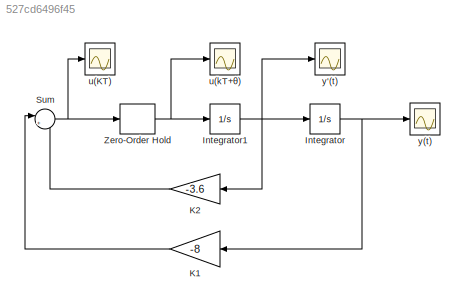
MODEL slx_527cd6496f45
KIND model
CONFIG AbsTol = auto
CONFIG EnableMultiTasking = off
CONFIG FixedStep = auto
CONFIG MaxStep = auto
CONFIG MinStep = auto
CONFIG RelTol = 1e-3
CONFIG SampleTimeConstraint = Unconstrained
CONFIG Solver = VariableStepAuto
CONFIG SolverName = VariableStepAuto
CONFIG StartTime = 0
CONFIG StopTime = 10
BLOCK [Integrator] Integrator
  InitialCondition = 1
  Ports = [1, 1]
BLOCK [Integrator] Integrator1
  Ports = [1, 1]
BLOCK [Gain] K1
  Gain = -8
  OutDataTypeStr = Inherit: Inherit via internal rule
  ParamDataTypeStr = Inherit: Inherit via internal rule
  SaturateOnIntegerOverflow = off
BLOCK [Gain] K2
  Gain = -3.6
  OutDataTypeStr = Inherit: Inherit via internal rule
  ParamDataTypeStr = Inherit: Inherit via internal rule
  SaturateOnIntegerOverflow = off
BLOCK [Sum] Sum
  IconShape = round
  InputSameDT = off
  Inputs = |++
  OutDataTypeStr = Inherit: Inherit via internal rule
  Ports = [2, 1]
  SaturateOnIntegerOverflow = off
BLOCK [ZeroOrderHold] Zero-Order Hold
  SampleTime = 0.1
BLOCK [Scope] u(KT)
  Floating = off
  NumInputPorts = 1
  Ports = [1]
  ScopeSpecificationString = Simulink.scopes.TimeScopeBlockCfg('CurrentConfiguration', extmgr.ConfigurationSet(extmgr.Configuration('Core','General UI',true),extmgr.Configuration('Core','Source UI',true),extmgr.Configuration('Sources','WiredSimulink',true,'DataLoggingVariableName','ScopeData1'),extmgr.Configuration('Visuals','Time Domain',true,'SerializedDisplays',{struct('MinYLimReal','-9.29382','MaxYLimReal','3.64442','YLab...<+1362ch>
BLOCK [Scope] u(kT+θ)
  Floating = off
  NumInputPorts = 1
  Ports = [1]
  ScopeSpecificationString = Simulink.scopes.TimeScopeBlockCfg('CurrentConfiguration', extmgr.ConfigurationSet(extmgr.Configuration('Core','General UI',true),extmgr.Configuration('Core','Source UI',true),extmgr.Configuration('Sources','WiredSimulink',true,'DataLoggingVariableName','ScopeData2'),extmgr.Configuration('Visuals','Time Domain',true,'SerializedDisplays',{struct('MinYLimReal','-9.29382','MaxYLimReal','3.64442','YLab...<+1374ch>
BLOCK [Scope] y'(t)
  Floating = off
  NumInputPorts = 1
  Ports = [1]
  ScopeSpecificationString = Simulink.scopes.TimeScopeBlockCfg('CurrentConfiguration', extmgr.ConfigurationSet(extmgr.Configuration('Core','General UI',true),extmgr.Configuration('Core','Source UI',true),extmgr.Configuration('Sources','WiredSimulink',true,'DataLoggingVariableName','ScopeData3'),extmgr.Configuration('Visuals','Time Domain',true,'SerializedDisplays',{struct('MinYLimReal','-1.74409','MaxYLimReal','0.33682','YLab...<+1451ch>
BLOCK [Scope] y(t)
  Floating = off
  NumInputPorts = 1
  Ports = [1]
  ScopeSpecificationString = Simulink.scopes.TimeScopeBlockCfg('CurrentConfiguration', extmgr.ConfigurationSet(extmgr.Configuration('Core','General UI',true),extmgr.Configuration('Core','Source UI',true),extmgr.Configuration('Sources','WiredSimulink',true,'DataLoggingVariableName','ScopeData4'),extmgr.Configuration('Visuals','Time Domain',true,'SerializedDisplays',{struct('MinYLimReal','-0.2198','MaxYLimReal','1.13553','YLabe...<+1393ch>
NET Integrator1:1 -> Integrator:1, K2:1, y'(t):1
NET Integrator:1 -> K1:1, y(t):1
LINE K1:1 -> Sum:1
LINE K2:1 -> Sum:2
NET Sum:1 -> Zero-Order Hold:1, u(KT):1
NET Zero-Order Hold:1 -> Integrator1:1, u(kT+θ):1
note: NET lines group one-source signal fan-out (src -> all destinations, sorted); 1:1 wires keep LINE
